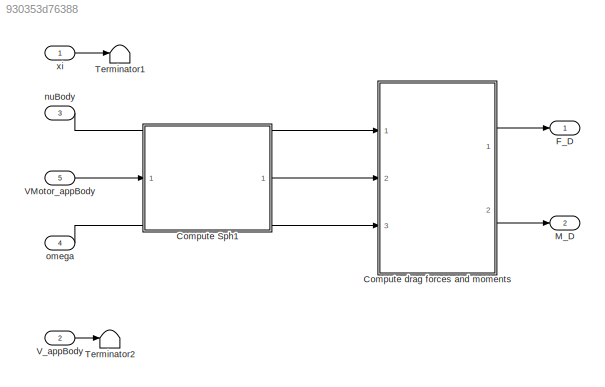
MODEL slx_930353d76388
KIND model
CONFIG AbsTol = auto
CONFIG EnableMultiTasking = on
CONFIG FixedStep = auto
CONFIG MaxStep = auto
CONFIG MinStep = auto
CONFIG RelTol = 1e-3
CONFIG SampleTimeConstraint = Unconstrained
CONFIG SolverName = VariableStepAuto
CONFIG StartTime = 0.0
CONFIG StopTime = 10.0
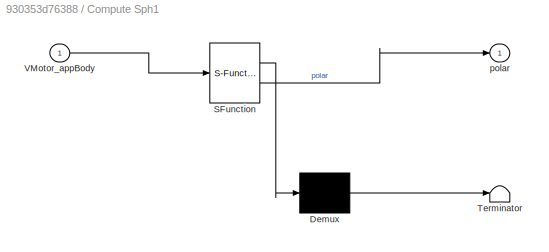
BLOCK [SubSystem] Compute Sph1
  ErrorFcn = Stateflow.Translate.translate
  PermitHierarchicalResolution = ExplicitOnly
  Ports = [1, 1]
  RequestExecContextInheritance = off
  SFBlockType = MATLAB Function
  TreatAsAtomicUnit = on
BLOCK [Demux] Compute Sph1/ Demux 
  Outputs = 1
  Ports = [1, 1]
BLOCK [S-Function] Compute Sph1/ SFunction 
  EnableBusSupport = on
  FunctionName = sf_sfun
  PortCounts = [1 2]
  Ports = [1, 2]
  SFcnIsStateOwnerBlock = off
  SFunctionDeploymentMode = off
  Tag = Stateflow S-Function 3
BLOCK [Terminator] Compute Sph1/ Terminator 
BLOCK [Inport] Compute Sph1/VMotor_appBody
BLOCK [Outport] Compute Sph1/polar
  VectorParamsAs1DForOutWhenUnconnected = off
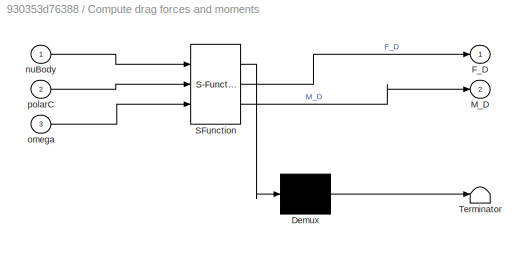
BLOCK [SubSystem] Compute drag forces and moments
  ErrorFcn = Stateflow.Translate.translate
  PermitHierarchicalResolution = ExplicitOnly
  Ports = [3, 2]
  RequestExecContextInheritance = off
  SFBlockType = MATLAB Function
  TreatAsAtomicUnit = on
BLOCK [Demux] Compute drag forces and moments/ Demux 
  Outputs = 1
  Ports = [1, 1]
BLOCK [S-Function] Compute drag forces and moments/ SFunction 
  EnableBusSupport = on
  FunctionName = sf_sfun
  Parameters = Uav
  PortCounts = [3 3]
  Ports = [3, 3]
  SFcnIsStateOwnerBlock = off
  SFunctionDeploymentMode = off
  Tag = Stateflow S-Function 2
BLOCK [Terminator] Compute drag forces and moments/ Terminator 
BLOCK [Outport] Compute drag forces and moments/F_D
  VectorParamsAs1DForOutWhenUnconnected = off
BLOCK [Outport] Compute drag forces and moments/M_D
  Port = 2
  VectorParamsAs1DForOutWhenUnconnected = off
BLOCK [Inport] Compute drag forces and moments/nuBody
BLOCK [Inport] Compute drag forces and moments/omega
  Port = 3
BLOCK [Inport] Compute drag forces and moments/polarC
  Port = 2
BLOCK [Outport] F_D
  VectorParamsAs1DForOutWhenUnconnected = off
BLOCK [Outport] M_D
  Port = 2
  VectorParamsAs1DForOutWhenUnconnected = off
BLOCK [Terminator] Terminator1
BLOCK [Terminator] Terminator2
BLOCK [Inport] VMotor_appBody
  Port = 5
  PortDimensions = [3,4]
BLOCK [Inport] V_appBody
  Port = 2
  PortDimensions = 3
BLOCK [Inport] nuBody
  Port = 3
  PortDimensions = 3
BLOCK [Inport] omega
  Port = 4
  PortDimensions = Uav.N_ROTORS
BLOCK [Inport] xi
  PortDimensions = 3
LINE Compute Sph1:1 -> Compute drag forces and moments:2
LINE Compute drag forces and moments:1 -> F_D:1
LINE Compute drag forces and moments:2 -> M_D:1
LINE VMotor_appBody:1 -> Compute Sph1:1
LINE V_appBody:1 -> Terminator2:1
LINE nuBody:1 -> Compute drag forces and moments:1
LINE omega:1 -> Compute drag forces and moments:3
LINE xi:1 -> Terminator1:1
CHART Compute drag forces and moments states=1 transitions=1
  STATE_LABEL 'eML_blk_kernel()'
  STATE_LABEL "SCRIPT:\nfunction [F_D, M_D] = computeDrag(nuBody, polarC, omega, Uav)\n%#codegen\n\nazimuth   = polarC(1,:);\nelevation = polarC(2,:);\nradius    = polarC(3,:);\n\n% Margin to prevent shattering - doesn't seem to work\n% for i = 1:3\n%     if ( ( V_appBody(i) > -0.002 ) && ( V_appBody(i) < 0.002 ) )\n%         V_appBody(i) = 0;\n%     end\n% end\n\n% Convert from polar to spherical coordinates\n% [ azimuth, elev...<+2085ch>"
CHART Compute Sph1 states=1 transitions=1
  STATE_LABEL 'eML_blk_kernel()'
  STATE_LABEL 'SCRIPT:\nfunction polar  = computeSph(VMotor_appBody)\n%#codegen\n\n% Convert from polar to spherical coordinates\nradius = zeros(1,4);\nelevation = zeros(1,4);\nazimuth = zeros(1,4);\n\nfor i = 1:length( radius )\n    [ azimuth(1,i), elevation(1,i), radius(1,i) ] = ...\n        cart2sph( VMotor_appBody(1,i), VMotor_appBody(2,i), VMotor_appBody(3,i) );\nend\n\n\npolar = [azimuth; elevation; radius];'
CHART  states=0 transitions=0
CHART  states=0 transitions=0
